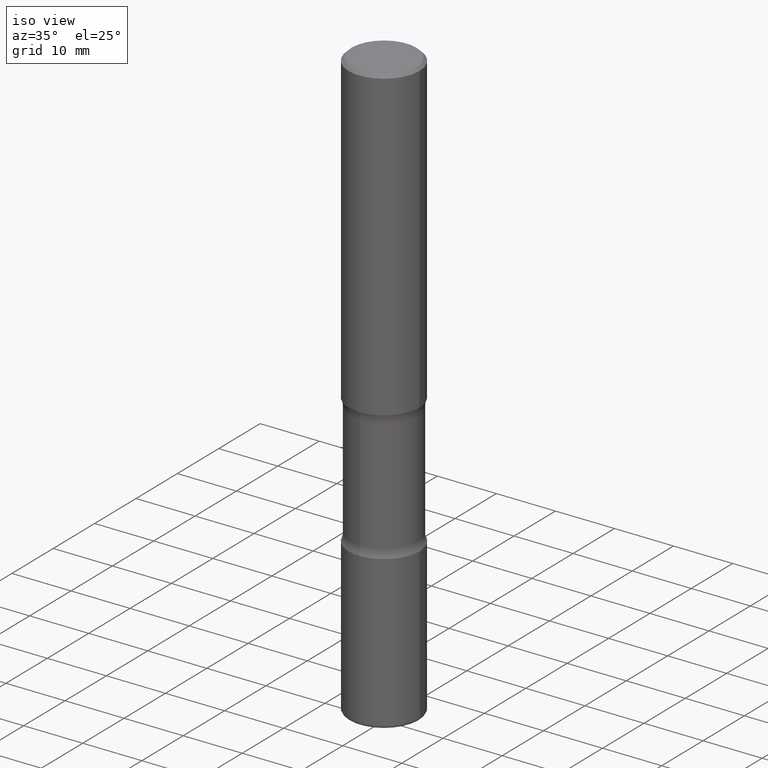
[diagram: clean part render]
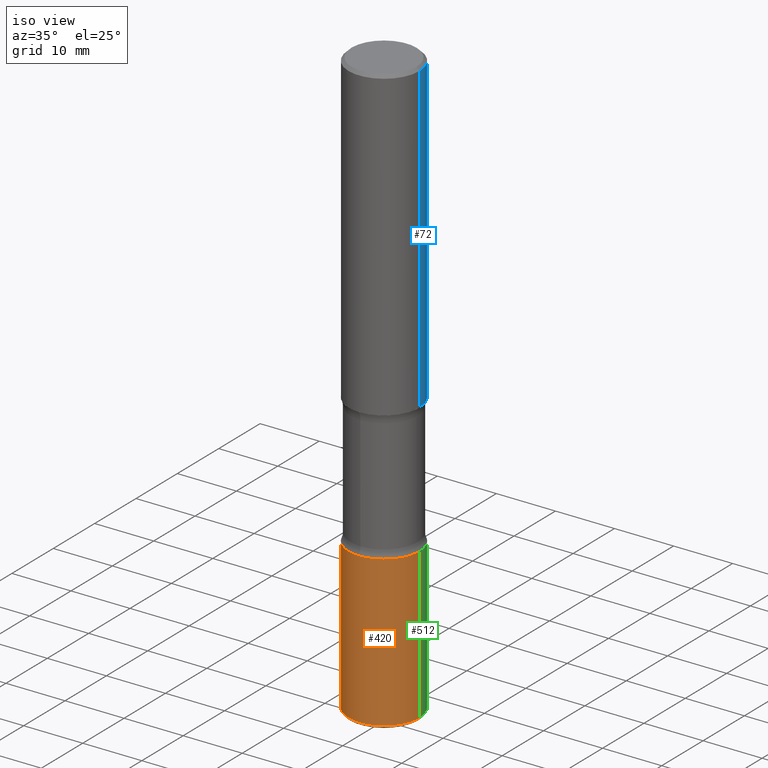
[diagram: same view with three faces highlighted in distinct colors, each labeled with its STEP entity id]
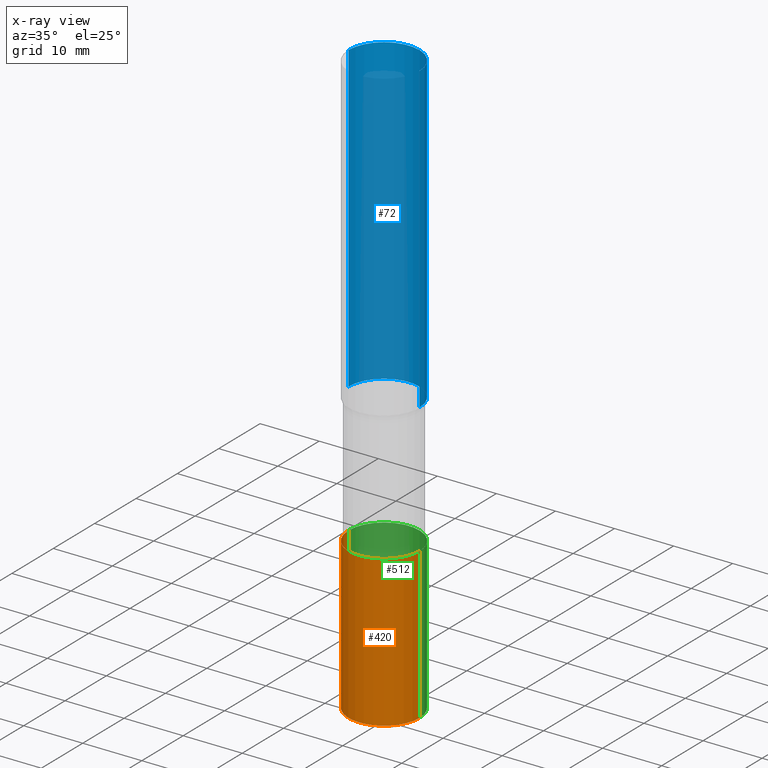
[diagram: x-ray of the same camera — body ghosted, the three highlighted faces saturated]
A machine part, iso view with three faces highlighted in distinct colors.
The next image is the same camera in x-ray (body ghosted, the three faces saturated) — at least one of them is partly hidden behind the body in this view.
Their STEP definitions:

[orange] entity #420 — the highlighted cylindrical surface (partial cylindrical patch) has radius 5.9995 mm, axis along (-0, 0, 1).
#17 = CYLINDRICAL_SURFACE ( 'NONE', #130, 0.2362000000000001321 ) ;
#20 = CIRCLE ( 'NONE', #140, 0.2362000000000001321 ) ;
#31 = CIRCLE ( 'NONE', #423, 0.2362000000000001598 ) ;
#42 = DIRECTION ( 'NONE',  ( 1.000000000000000000, -6.982962677686268288E-15, 0.000000000000000000 ) ) ;
#62 = CARTESIAN_POINT ( 'NONE',  ( 7.124628819939777829E-29, -1.017208173258562247E-14, -2.913400000000000212 ) ) ;
#69 = DIRECTION ( 'NONE',  ( 1.000000000000000000, -6.982962677686269077E-15, 0.000000000000000000 ) ) ;
#93 = ORIENTED_EDGE ( 'NONE', *, *, #274, .T. ) ;
#101 = DIRECTION ( 'NONE',  ( -2.445468806185136877E-29, 3.491481338843145188E-15, 1.000000000000000000 ) ) ;
#112 = VECTOR ( 'NONE', #382, 39.37007874015748143 ) ;
#128 = CARTESIAN_POINT ( 'NONE',  ( 0.2362000000000001321, -1.649375784469497117E-15, 1.151752954443000789E-29 ) ) ;
#130 = AXIS2_PLACEMENT_3D ( 'NONE', #367, #533, #153 ) ;
#132 = EDGE_CURVE ( 'NONE', #265, #401, #220, .T. ) ;
#133 = VERTEX_POINT ( 'NONE', #272 ) ;
#140 = AXIS2_PLACEMENT_3D ( 'NONE', #62, #412, #69 ) ;
#153 = DIRECTION ( 'NONE',  ( 1.000000000000000000, -6.982962677686266711E-15, 4.876176775795936353E-29 ) ) ;
#175 = ORIENTED_EDGE ( 'NONE', *, *, #196, .F. ) ;
#196 = EDGE_CURVE ( 'NONE', #401, #133, #20, .T. ) ;
#201 = LINE ( 'NONE', #128, #112 ) ;
#220 = LINE ( 'NONE', #269, #345 ) ;
#233 = CARTESIAN_POINT ( 'NONE',  ( 0.2362000000000001321, -1.532655563311975191E-14, -3.917300000000000448 ) ) ;
#251 = EDGE_CURVE ( 'NONE', #265, #478, #31, .T. ) ;
#257 = ORIENTED_EDGE ( 'NONE', *, *, #132, .F. ) ;
#265 = VERTEX_POINT ( 'NONE', #430 ) ;
#269 = CARTESIAN_POINT ( 'NONE',  ( -0.2362000000000001321, 1.678301941865357577E-15, -1.161852468318209457E-29 ) ) ;
#272 = CARTESIAN_POINT ( 'NONE',  ( 0.2362000000000001321, -1.182145751705511899E-14, -2.913400000000000212 ) ) ;
#274 = EDGE_CURVE ( 'NONE', #478, #133, #201, .T. ) ;
#285 = DIRECTION ( 'NONE',  ( -2.445468806185136597E-29, 3.491481338843145583E-15, 1.000000000000000000 ) ) ;
#289 = ORIENTED_EDGE ( 'NONE', *, *, #251, .T. ) ;
#297 = CARTESIAN_POINT ( 'NONE',  ( 9.579634954469036932E-29, -1.367717984865025539E-14, -3.917300000000000448 ) ) ;
#345 = VECTOR ( 'NONE', #101, 39.37007874015748143 ) ;
#367 = CARTESIAN_POINT ( 'NONE',  ( 0.000000000000000000, 0.000000000000000000, 0.000000000000000000 ) ) ;
#382 = DIRECTION ( 'NONE',  ( -2.445468806185136877E-29, 3.491481338843145188E-15, 1.000000000000000000 ) ) ;
#401 = VERTEX_POINT ( 'NONE', #451 ) ;
#406 = FACE_OUTER_BOUND ( 'NONE', #486, .T. ) ;
#412 = DIRECTION ( 'NONE',  ( -2.445468806185136597E-29, 3.491481338843145583E-15, 1.000000000000000000 ) ) ;
#420 = ADVANCED_FACE ( 'NONE', ( #406 ), #17, .T. ) ;
#423 = AXIS2_PLACEMENT_3D ( 'NONE', #297, #285, #42 ) ;
#430 = CARTESIAN_POINT ( 'NONE',  ( -0.2362000000000001321, -1.199887790678489899E-14, -3.917300000000000448 ) ) ;
#451 = CARTESIAN_POINT ( 'NONE',  ( -0.2362000000000001321, -1.024632884875258096E-14, -2.913400000000000212 ) ) ;
#478 = VERTEX_POINT ( 'NONE', #233 ) ;
#486 = EDGE_LOOP ( 'NONE', ( #257, #289, #93, #175 ) ) ;
#533 = DIRECTION ( 'NONE',  ( -2.445468806185136597E-29, 3.491481338843145583E-15, 1.000000000000000000 ) ) ;

[blue] entity #72 — the highlighted cylindrical surface (partial cylindrical patch) has radius 5.9995 mm, axis along (-0, 0, 1).
#2 = ORIENTED_EDGE ( 'NONE', *, *, #36, .T. ) ;
#10 = DIRECTION ( 'NONE',  ( -2.445468806185136597E-29, 3.491481338843145583E-15, 1.000000000000000000 ) ) ;
#18 = VECTOR ( 'NONE', #499, 39.37007874015748143 ) ;
#36 = EDGE_CURVE ( 'NONE', #237, #476, #327, .T. ) ;
#40 = CIRCLE ( 'NONE', #359, 0.2361999999999998823 ) ;
#71 = CARTESIAN_POINT ( 'NONE',  ( 0.000000000000000000, 0.000000000000000000, 0.000000000000000000 ) ) ;
#72 = ADVANCED_FACE ( 'NONE', ( #225 ), #404, .T. ) ;
#74 = AXIS2_PLACEMENT_3D ( 'NONE', #71, #394, #352 ) ;
#81 = AXIS2_PLACEMENT_3D ( 'NONE', #341, #10, #147 ) ;
#103 = VECTOR ( 'NONE', #229, 39.37007874015748143 ) ;
#108 = EDGE_CURVE ( 'NONE', #448, #237, #329, .T. ) ;
#147 = DIRECTION ( 'NONE',  ( 1.000000000000000000, -6.982962677686269077E-15, 0.000000000000000000 ) ) ;
#155 = VERTEX_POINT ( 'NONE', #255 ) ;
#180 = DIRECTION ( 'NONE',  ( -2.445468806185136597E-29, 3.491481338843145583E-15, 1.000000000000000000 ) ) ;
#182 = CARTESIAN_POINT ( 'NONE',  ( 0.2362000000000001321, -8.797136381349186305E-15, -2.047200000000000131 ) ) ;
#193 = EDGE_CURVE ( 'NONE', #448, #155, #417, .T. ) ;
#209 = ORIENTED_EDGE ( 'NONE', *, *, #193, .F. ) ;
#225 = FACE_OUTER_BOUND ( 'NONE', #317, .T. ) ;
#229 = DIRECTION ( 'NONE',  ( -2.445468806185136877E-29, 3.491481338843145188E-15, 1.000000000000000000 ) ) ;
#234 = EDGE_CURVE ( 'NONE', #155, #476, #40, .T. ) ;
#237 = VERTEX_POINT ( 'NONE', #510 ) ;
#255 = CARTESIAN_POINT ( 'NONE',  ( 0.2361999999999998823, -1.690279253850498179E-15, -0.02000000000000006981 ) ) ;
#266 = ORIENTED_EDGE ( 'NONE', *, *, #234, .F. ) ;
#282 = CARTESIAN_POINT ( 'NONE',  ( -0.2361999999999998823, 1.579546157692632438E-15, -0.02000000000000006981 ) ) ;
#283 = CARTESIAN_POINT ( 'NONE',  ( -0.2361999999999999933, 1.678301941865356591E-15, -1.161852468318208757E-29 ) ) ;
#317 = EDGE_LOOP ( 'NONE', ( #454, #2, #266, #209 ) ) ;
#319 = CARTESIAN_POINT ( 'NONE',  ( 0.2361999999999999933, -1.649375784469496131E-15, 1.151752954443000088E-29 ) ) ;
#327 = LINE ( 'NONE', #283, #18 ) ;
#329 = CIRCLE ( 'NONE', #81, 0.2362000000000001321 ) ;
#341 = CARTESIAN_POINT ( 'NONE',  ( 5.006363740022212241E-29, -7.147760596879688202E-15, -2.047200000000000131 ) ) ;
#352 = DIRECTION ( 'NONE',  ( 1.000000000000000000, -6.982962677686266711E-15, 4.876176775795936353E-29 ) ) ;
#359 = AXIS2_PLACEMENT_3D ( 'NONE', #445, #180, #480 ) ;
#394 = DIRECTION ( 'NONE',  ( -2.445468806185136597E-29, 3.491481338843145583E-15, 1.000000000000000000 ) ) ;
#404 = CYLINDRICAL_SURFACE ( 'NONE', #74, 0.2361999999999999933 ) ;
#417 = LINE ( 'NONE', #319, #103 ) ;
#445 = CARTESIAN_POINT ( 'NONE',  ( 4.890937612370289799E-31, -6.982962677686315028E-17, -0.02000000000000006981 ) ) ;
#448 = VERTEX_POINT ( 'NONE', #182 ) ;
#454 = ORIENTED_EDGE ( 'NONE', *, *, #108, .T. ) ;
#476 = VERTEX_POINT ( 'NONE', #282 ) ;
#480 = DIRECTION ( 'NONE',  ( 1.000000000000000000, -6.982962677686267499E-15, 0.000000000000000000 ) ) ;
#499 = DIRECTION ( 'NONE',  ( -2.445468806185136877E-29, 3.491481338843145188E-15, 1.000000000000000000 ) ) ;
#510 = CARTESIAN_POINT ( 'NONE',  ( -0.2362000000000001598, -1.930493169962915017E-15, -2.047200000000000131 ) ) ;

[green] entity #512 — the highlighted cylindrical surface (partial cylindrical patch) has radius 5.9995 mm, axis along (-0, 0, 1).
#30 = CARTESIAN_POINT ( 'NONE',  ( 9.579634954469036932E-29, -1.367717984865025539E-14, -3.917300000000000448 ) ) ;
#49 = DIRECTION ( 'NONE',  ( 1.000000000000000000, -6.982962677686269077E-15, 0.000000000000000000 ) ) ;
#50 = FACE_OUTER_BOUND ( 'NONE', #455, .T. ) ;
#61 = ORIENTED_EDGE ( 'NONE', *, *, #202, .T. ) ;
#90 = CARTESIAN_POINT ( 'NONE',  ( 7.124628819939777829E-29, -1.017208173258562247E-14, -2.913400000000000212 ) ) ;
#101 = DIRECTION ( 'NONE',  ( -2.445468806185136877E-29, 3.491481338843145188E-15, 1.000000000000000000 ) ) ;
#112 = VECTOR ( 'NONE', #382, 39.37007874015748143 ) ;
#128 = CARTESIAN_POINT ( 'NONE',  ( 0.2362000000000001321, -1.649375784469497117E-15, 1.151752954443000789E-29 ) ) ;
#132 = EDGE_CURVE ( 'NONE', #265, #401, #220, .T. ) ;
#133 = VERTEX_POINT ( 'NONE', #272 ) ;
#135 = CARTESIAN_POINT ( 'NONE',  ( 0.000000000000000000, 0.000000000000000000, 0.000000000000000000 ) ) ;
#142 = EDGE_CURVE ( 'NONE', #133, #401, #435, .T. ) ;
#161 = AXIS2_PLACEMENT_3D ( 'NONE', #30, #169, #525 ) ;
#169 = DIRECTION ( 'NONE',  ( -2.445468806185136597E-29, 3.491481338843145583E-15, 1.000000000000000000 ) ) ;
#185 = ORIENTED_EDGE ( 'NONE', *, *, #132, .T. ) ;
#186 = ORIENTED_EDGE ( 'NONE', *, *, #274, .F. ) ;
#201 = LINE ( 'NONE', #128, #112 ) ;
#202 = EDGE_CURVE ( 'NONE', #478, #265, #380, .T. ) ;
#220 = LINE ( 'NONE', #269, #345 ) ;
#232 = AXIS2_PLACEMENT_3D ( 'NONE', #135, #314, #482 ) ;
#233 = CARTESIAN_POINT ( 'NONE',  ( 0.2362000000000001321, -1.532655563311975191E-14, -3.917300000000000448 ) ) ;
#265 = VERTEX_POINT ( 'NONE', #430 ) ;
#269 = CARTESIAN_POINT ( 'NONE',  ( -0.2362000000000001321, 1.678301941865357577E-15, -1.161852468318209457E-29 ) ) ;
#272 = CARTESIAN_POINT ( 'NONE',  ( 0.2362000000000001321, -1.182145751705511899E-14, -2.913400000000000212 ) ) ;
#274 = EDGE_CURVE ( 'NONE', #478, #133, #201, .T. ) ;
#314 = DIRECTION ( 'NONE',  ( -2.445468806185136597E-29, 3.491481338843145583E-15, 1.000000000000000000 ) ) ;
#345 = VECTOR ( 'NONE', #101, 39.37007874015748143 ) ;
#353 = CYLINDRICAL_SURFACE ( 'NONE', #232, 0.2362000000000001321 ) ;
#365 = DIRECTION ( 'NONE',  ( -2.445468806185136597E-29, 3.491481338843145583E-15, 1.000000000000000000 ) ) ;
#366 = ORIENTED_EDGE ( 'NONE', *, *, #142, .F. ) ;
#380 = CIRCLE ( 'NONE', #161, 0.2362000000000001598 ) ;
#382 = DIRECTION ( 'NONE',  ( -2.445468806185136877E-29, 3.491481338843145188E-15, 1.000000000000000000 ) ) ;
#401 = VERTEX_POINT ( 'NONE', #451 ) ;
#430 = CARTESIAN_POINT ( 'NONE',  ( -0.2362000000000001321, -1.199887790678489899E-14, -3.917300000000000448 ) ) ;
#435 = CIRCLE ( 'NONE', #528, 0.2362000000000001321 ) ;
#451 = CARTESIAN_POINT ( 'NONE',  ( -0.2362000000000001321, -1.024632884875258096E-14, -2.913400000000000212 ) ) ;
#455 = EDGE_LOOP ( 'NONE', ( #61, #185, #366, #186 ) ) ;
#478 = VERTEX_POINT ( 'NONE', #233 ) ;
#482 = DIRECTION ( 'NONE',  ( 1.000000000000000000, -6.982962677686266711E-15, 4.876176775795936353E-29 ) ) ;
#512 = ADVANCED_FACE ( 'NONE', ( #50 ), #353, .T. ) ;
#525 = DIRECTION ( 'NONE',  ( 1.000000000000000000, -6.982962677686268288E-15, 0.000000000000000000 ) ) ;
#528 = AXIS2_PLACEMENT_3D ( 'NONE', #90, #365, #49 ) ;